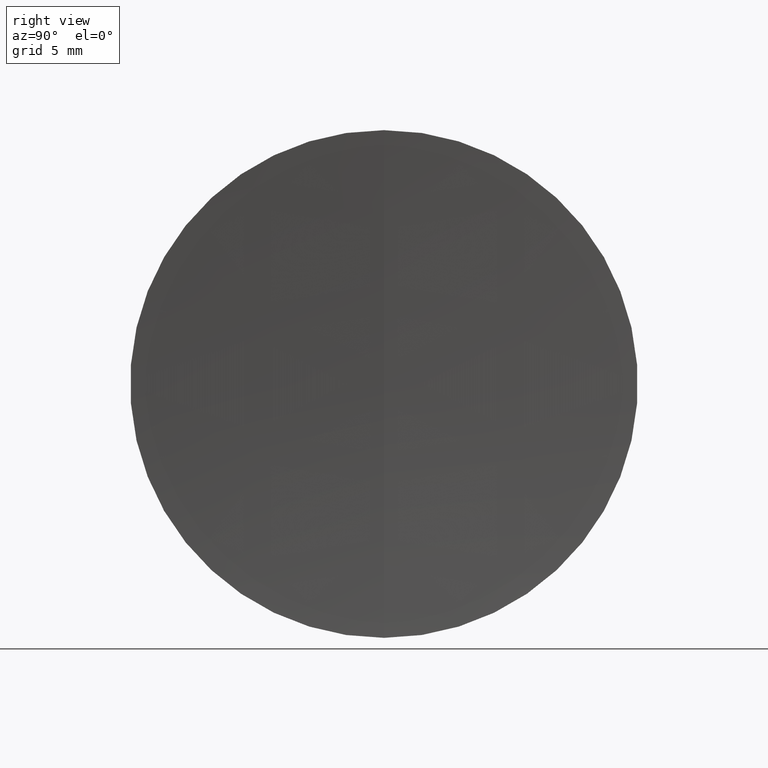
[diagram: clean part render]
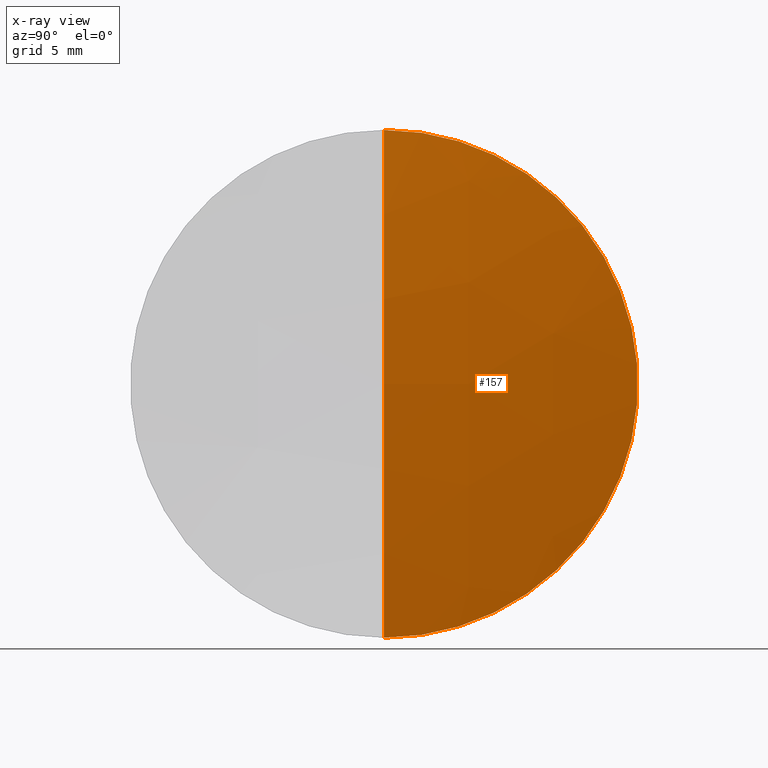
[diagram: x-ray — body ghosted, one internal face saturated and labeled with its STEP entity id]
A machine part, right view, then the same camera in x-ray: the body is ghosted and one INTERNAL B-rep face — a face not visible from any outside direction — is saturated and labeled: STEP entity #157.
In plain terms, the highlighted spherical surface has radius 93.11 mm.
Its self-contained STEP definition (entity closure, byte-faithful):
#3 = DIRECTION ( 'NONE',  ( 0.0000000000000000000, 0.0000000000000000000, 1.000000000000000000 ) ) ;
#17 = CIRCLE ( 'NONE', #280, 93.10999999999999900 ) ;
#28 = DIRECTION ( 'NONE',  ( 0.0000000000000000000, 0.0000000000000000000, 1.000000000000000000 ) ) ;
#30 = DIRECTION ( 'NONE',  ( 0.0000000000000000000, 1.000000000000000000, 0.0000000000000000000 ) ) ;
#50 = ORIENTED_EDGE ( 'NONE', *, *, #168, .F. ) ;
#52 = DIRECTION ( 'NONE',  ( 0.0000000000000000000, -1.224646799147353200E-016, 1.000000000000000000 ) ) ;
#65 = CIRCLE ( 'NONE', #225, 12.70000000000001500 ) ;
#117 = VERTEX_POINT ( 'NONE', #317 ) ;
#118 = EDGE_LOOP ( 'NONE', ( #50, #169, #222 ) ) ;
#119 = VERTEX_POINT ( 'NONE', #278 ) ;
#145 = VERTEX_POINT ( 'NONE', #329 ) ;
#148 = EDGE_CURVE ( 'NONE', #145, #119, #65, .T. ) ;
#155 = FACE_OUTER_BOUND ( 'NONE', #118, .T. ) ;
#157 = ADVANCED_FACE ( 'NONE', ( #155 ), #202, .T. ) ;
#158 = DIRECTION ( 'NONE',  ( -0.0000000000000000000, 1.000000000000000000, 1.224646799147353200E-016 ) ) ;
#164 = DIRECTION ( 'NONE',  ( 0.0000000000000000000, 0.0000000000000000000, -1.000000000000000000 ) ) ;
#165 = CARTESIAN_POINT ( 'NONE',  ( -4.668257514210329100, 0.0000000000000000000, -3.765318713007809200E-014 ) ) ;
#168 = EDGE_CURVE ( 'NONE', #117, #145, #286, .T. ) ;
#169 = ORIENTED_EDGE ( 'NONE', *, *, #184, .T. ) ;
#184 = EDGE_CURVE ( 'NONE', #117, #119, #17, .T. ) ;
#188 = CARTESIAN_POINT ( 'NONE',  ( -4.668257514210329100, 0.0000000000000000000, -3.765318713007809200E-014 ) ) ;
#191 = DIRECTION ( 'NONE',  ( -1.000000000000000000, -0.0000000000000000000, -0.0000000000000000000 ) ) ;
#202 = SPHERICAL_SURFACE ( 'NONE', #250, 93.10999999999999900 ) ;
#218 = CARTESIAN_POINT ( 'NONE',  ( 87.57155005280489500, 0.0000000000000000000, 0.0000000000000000000 ) ) ;
#222 = ORIENTED_EDGE ( 'NONE', *, *, #148, .F. ) ;
#225 = AXIS2_PLACEMENT_3D ( 'NONE', #218, #191, #28 ) ;
#250 = AXIS2_PLACEMENT_3D ( 'NONE', #165, #30, #3 ) ;
#269 = AXIS2_PLACEMENT_3D ( 'NONE', #188, #323, #164 ) ;
#278 = CARTESIAN_POINT ( 'NONE',  ( 87.57155005280489500, 1.555301434917140600E-015, -12.70000000000001700 ) ) ;
#280 = AXIS2_PLACEMENT_3D ( 'NONE', #320, #158, #52 ) ;
#286 = CIRCLE ( 'NONE', #269, 93.10999999999999900 ) ;
#317 = CARTESIAN_POINT ( 'NONE',  ( 88.44174248578967500, 0.0000000000000000000, -3.195184395664758900E-014 ) ) ;
#320 = CARTESIAN_POINT ( 'NONE',  ( -4.668257514210329100, 0.0000000000000000000, -3.765318713007809200E-014 ) ) ;
#323 = DIRECTION ( 'NONE',  ( 0.0000000000000000000, -1.000000000000000000, 0.0000000000000000000 ) ) ;
#329 = CARTESIAN_POINT ( 'NONE',  ( 87.57155005280489500, 0.0000000000000000000, 12.70000000000001500 ) ) ;